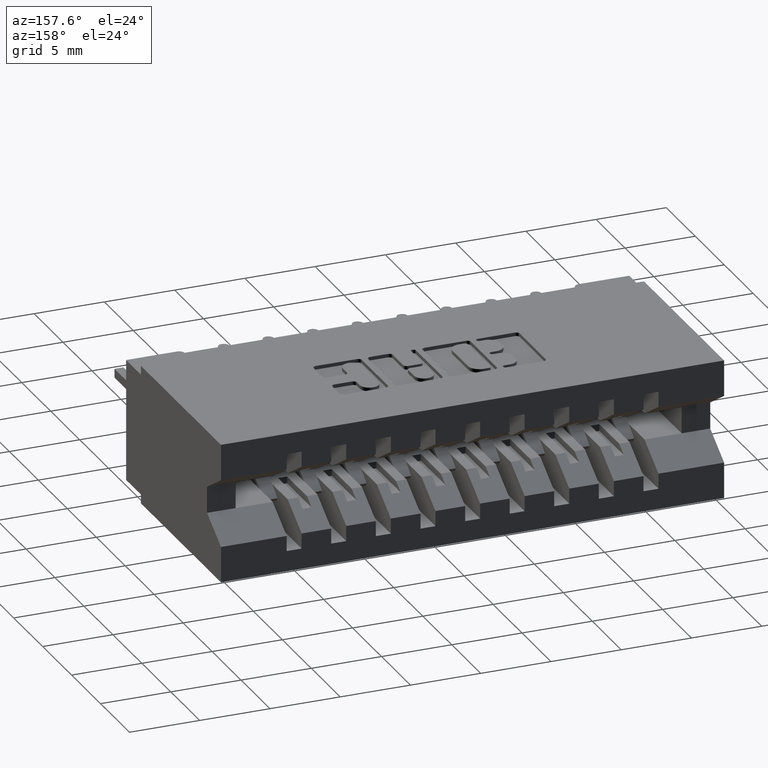
[diagram: clean part render]
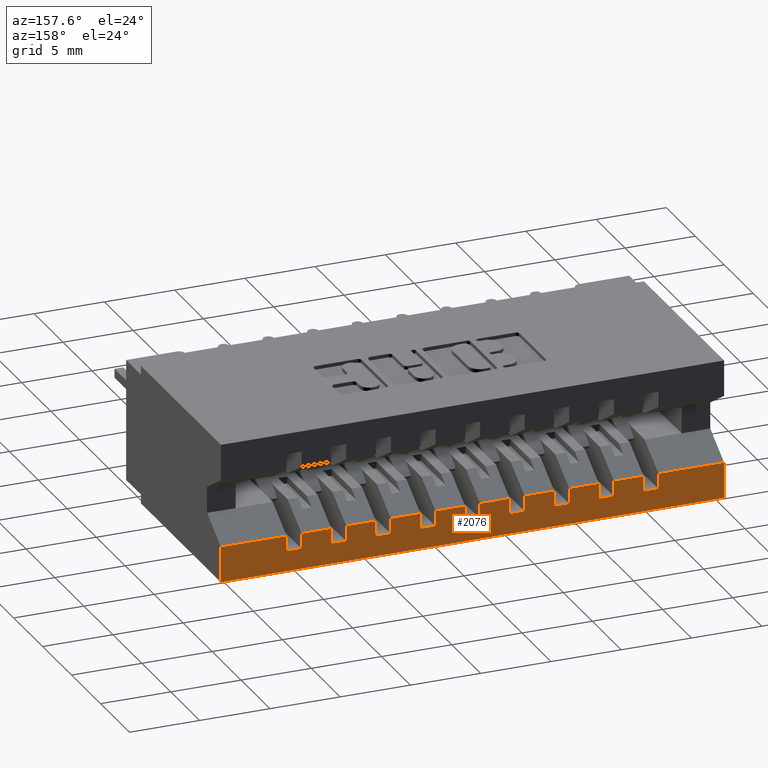
[diagram: same view with one face highlighted and labeled with its STEP entity id]
A machine part, auxiliary view. The second image highlights one B-rep face of the part: STEP entity #2076.
In plain terms, the highlighted planar face has unit normal (0, -1, 0).
Its self-contained STEP definition (entity closure, byte-faithful):
#26 = CARTESIAN_POINT ( 'NONE',  ( 0.6009999999999996456, 0.6449999999999999067, -5.373951300518784932E-17 ) ) ;
#161 = LINE ( 'NONE', #10041, #1628 ) ;
#163 = CARTESIAN_POINT ( 'NONE',  ( 0.4759999999999996456, 0.6449999999999999067, -0.3325000000000000178 ) ) ;
#251 = VECTOR ( 'NONE', #13571, 39.37007874015748143 ) ;
#271 = VECTOR ( 'NONE', #10078, 39.37007874015748143 ) ;
#284 = VERTEX_POINT ( 'NONE', #13947 ) ;
#332 = ORIENTED_EDGE ( 'NONE', *, *, #12105, .F. ) ;
#403 = DIRECTION ( 'NONE',  ( 2.385081683068867604E-16, 0.0000000000000000000, 1.000000000000000000 ) ) ;
#406 = VERTEX_POINT ( 'NONE', #16926 ) ;
#452 = EDGE_CURVE ( 'NONE', #599, #17177, #15991, .T. ) ;
#453 = EDGE_CURVE ( 'NONE', #5847, #5510, #7651, .T. ) ;
#551 = DIRECTION ( 'NONE',  ( 2.385081683068867604E-16, 0.0000000000000000000, 1.000000000000000000 ) ) ;
#571 = CARTESIAN_POINT ( 'NONE',  ( 0.8509999999999997566, 0.6449999999999999067, -5.373951300518784932E-17 ) ) ;
#599 = VERTEX_POINT ( 'NONE', #10039 ) ;
#613 = VECTOR ( 'NONE', #15566, 39.37007874015748143 ) ;
#642 = ORIENTED_EDGE ( 'NONE', *, *, #11053, .F. ) ;
#670 = CARTESIAN_POINT ( 'NONE',  ( 1.409999999999999920, 0.6449999999999999067, -0.2897499999999999520 ) ) ;
#675 = CARTESIAN_POINT ( 'NONE',  ( 1.409999999999999920, 0.6449999999999999067, -0.2897500000000000075 ) ) ;
#693 = EDGE_CURVE ( 'NONE', #7790, #2844, #4486, .T. ) ;
#762 = CARTESIAN_POINT ( 'NONE',  ( 0.3089999999999996083, 0.6449999999999999067, -0.2897500000000000075 ) ) ;
#794 = VERTEX_POINT ( 'NONE', #13463 ) ;
#805 = FACE_OUTER_BOUND ( 'NONE', #9536, .T. ) ;
#952 = ORIENTED_EDGE ( 'NONE', *, *, #11029, .F. ) ;
#969 = VERTEX_POINT ( 'NONE', #9470 ) ;
#1019 = VECTOR ( 'NONE', #1360, 39.37007874015748143 ) ;
#1089 = DIRECTION ( 'NONE',  ( -1.000000000000000000, 0.0000000000000000000, 0.0000000000000000000 ) ) ;
#1167 = CARTESIAN_POINT ( 'NONE',  ( 1.409999999999999920, 0.6449999999999999067, -0.2897500000000000075 ) ) ;
#1210 = CARTESIAN_POINT ( 'NONE',  ( 0.9339999999999996083, 0.6449999999999999067, -4.404883600063556642E-17 ) ) ;
#1226 = DIRECTION ( 'NONE',  ( -1.000000000000000000, 0.0000000000000000000, 0.0000000000000000000 ) ) ;
#1236 = EDGE_CURVE ( 'NONE', #4686, #6317, #13602, .T. ) ;
#1278 = VERTEX_POINT ( 'NONE', #16117 ) ;
#1360 = DIRECTION ( 'NONE',  ( -1.000000000000000000, 0.0000000000000000000, 0.0000000000000000000 ) ) ;
#1506 = CARTESIAN_POINT ( 'NONE',  ( 1.100999999999999535, 0.6449999999999999067, -0.2897499999999999520 ) ) ;
#1565 = VERTEX_POINT ( 'NONE', #16941 ) ;
#1628 = VECTOR ( 'NONE', #14391, 39.37007874015748143 ) ;
#1751 = CARTESIAN_POINT ( 'NONE',  ( 1.058999999999999719, 0.6449999999999999067, -4.404883600063556642E-17 ) ) ;
#1912 = ORIENTED_EDGE ( 'NONE', *, *, #16655, .T. ) ;
#1951 = VECTOR ( 'NONE', #14449, 39.37007874015748143 ) ;
#1976 = CARTESIAN_POINT ( 'NONE',  ( 0.0000000000000000000, 0.6449999999999999067, -0.2897500000000000075 ) ) ;
#2028 = DIRECTION ( 'NONE',  ( 2.385081683068867604E-16, 0.0000000000000000000, 1.000000000000000000 ) ) ;
#2076 = ADVANCED_FACE ( 'NONE', ( #805 ), #13185, .F. ) ;
#2118 = CARTESIAN_POINT ( 'NONE',  ( 0.6839999999999996083, 0.6449999999999999067, -0.3325000000000000178 ) ) ;
#2153 = ORIENTED_EDGE ( 'NONE', *, *, #12196, .T. ) ;
#2159 = ORIENTED_EDGE ( 'NONE', *, *, #11190, .F. ) ;
#2184 = DIRECTION ( 'NONE',  ( 2.385081683068867604E-16, 0.0000000000000000000, 1.000000000000000000 ) ) ;
#2358 = VERTEX_POINT ( 'NONE', #8457 ) ;
#2362 = DIRECTION ( 'NONE',  ( -1.000000000000000000, 0.0000000000000000000, 0.0000000000000000000 ) ) ;
#2377 = LINE ( 'NONE', #8095, #16700 ) ;
#2391 = EDGE_CURVE ( 'NONE', #8420, #11850, #7071, .T. ) ;
#2472 = CARTESIAN_POINT ( 'NONE',  ( 1.409999999999999920, 0.6449999999999999067, -0.2897500000000000075 ) ) ;
#2661 = ORIENTED_EDGE ( 'NONE', *, *, #693, .F. ) ;
#2817 = ORIENTED_EDGE ( 'NONE', *, *, #17392, .F. ) ;
#2844 = VERTEX_POINT ( 'NONE', #1506 ) ;
#2977 = VECTOR ( 'NONE', #2028, 39.37007874015748143 ) ;
#2991 = EDGE_CURVE ( 'NONE', #11989, #969, #15933, .T. ) ;
#3243 = CARTESIAN_POINT ( 'NONE',  ( 0.0000000000000000000, 0.6449999999999999067, 0.0000000000000000000 ) ) ;
#3372 = VERTEX_POINT ( 'NONE', #10690 ) ;
#3403 = EDGE_CURVE ( 'NONE', #4686, #406, #13190, .T. ) ;
#3412 = VERTEX_POINT ( 'NONE', #7744 ) ;
#3497 = EDGE_CURVE ( 'NONE', #284, #15598, #4110, .T. ) ;
#3517 = EDGE_CURVE ( 'NONE', #6317, #9070, #2377, .T. ) ;
#3561 = VECTOR ( 'NONE', #13973, 39.37007874015748143 ) ;
#3592 = LINE ( 'NONE', #7658, #2977 ) ;
#3632 = LINE ( 'NONE', #14832, #16205 ) ;
#3778 = CARTESIAN_POINT ( 'NONE',  ( 1.409999999999999920, 0.6449999999999999067, -0.3900000000000000133 ) ) ;
#3785 = VECTOR ( 'NONE', #9149, 39.37007874015748143 ) ;
#3812 = EDGE_CURVE ( 'NONE', #3372, #5813, #7533, .T. ) ;
#3847 = ORIENTED_EDGE ( 'NONE', *, *, #14819, .T. ) ;
#3874 = CARTESIAN_POINT ( 'NONE',  ( 0.3089999999999996083, 0.6449999999999999067, -0.3325000000000000178 ) ) ;
#4035 = DIRECTION ( 'NONE',  ( 2.385081683068867604E-16, 0.0000000000000000000, 1.000000000000000000 ) ) ;
#4078 = CARTESIAN_POINT ( 'NONE',  ( 1.409999999999999920, 0.6449999999999999067, -0.2897500000000000075 ) ) ;
#4110 = LINE ( 'NONE', #1167, #16116 ) ;
#4255 = EDGE_CURVE ( 'NONE', #10741, #2358, #14735, .T. ) ;
#4373 = VECTOR ( 'NONE', #1089, 39.37007874015748143 ) ;
#4480 = DIRECTION ( 'NONE',  ( 1.000000000000000000, -0.0000000000000000000, -2.307304048702925122E-16 ) ) ;
#4486 = LINE ( 'NONE', #10125, #1019 ) ;
#4515 = DIRECTION ( 'NONE',  ( 2.385081683068867604E-16, 0.0000000000000000000, 1.000000000000000000 ) ) ;
#4585 = CARTESIAN_POINT ( 'NONE',  ( 1.183999999999999719, 0.6449999999999999067, -0.2897500000000000075 ) ) ;
#4617 = LINE ( 'NONE', #3243, #9738 ) ;
#4659 = CARTESIAN_POINT ( 'NONE',  ( 0.5589999999999996083, 0.6449999999999999067, -0.3325000000000000178 ) ) ;
#4686 = VERTEX_POINT ( 'NONE', #670 ) ;
#4785 = DIRECTION ( 'NONE',  ( -1.000000000000000000, 0.0000000000000000000, 0.0000000000000000000 ) ) ;
#4907 = CARTESIAN_POINT ( 'NONE',  ( 0.1839999999999996916, 0.6449999999999999067, -4.404883600063556642E-17 ) ) ;
#4920 = ORIENTED_EDGE ( 'NONE', *, *, #9069, .T. ) ;
#4971 = CARTESIAN_POINT ( 'NONE',  ( 0.8089999999999997193, 0.6449999999999999067, -4.404883600063556642E-17 ) ) ;
#5097 = VERTEX_POINT ( 'NONE', #15812 ) ;
#5205 = ORIENTED_EDGE ( 'NONE', *, *, #11509, .T. ) ;
#5275 = EDGE_CURVE ( 'NONE', #17955, #1565, #9586, .T. ) ;
#5349 = ORIENTED_EDGE ( 'NONE', *, *, #16760, .T. ) ;
#5397 = EDGE_CURVE ( 'NONE', #8420, #11989, #161, .T. ) ;
#5407 = DIRECTION ( 'NONE',  ( -1.000000000000000000, -0.0000000000000000000, -0.0000000000000000000 ) ) ;
#5485 = VECTOR ( 'NONE', #8950, 39.37007874015748143 ) ;
#5510 = VERTEX_POINT ( 'NONE', #12404 ) ;
#5514 = LINE ( 'NONE', #8208, #16136 ) ;
#5538 = CARTESIAN_POINT ( 'NONE',  ( 0.6009999999999996456, 0.6449999999999999067, -0.2897499999999999520 ) ) ;
#5556 = LINE ( 'NONE', #26, #8239 ) ;
#5683 = CARTESIAN_POINT ( 'NONE',  ( 0.9339999999999996083, 0.6449999999999999067, -0.2897500000000000075 ) ) ;
#5691 = ORIENTED_EDGE ( 'NONE', *, *, #1236, .T. ) ;
#5694 = EDGE_CURVE ( 'NONE', #7538, #13763, #7228, .T. ) ;
#5695 = ORIENTED_EDGE ( 'NONE', *, *, #13879, .F. ) ;
#5767 = VECTOR ( 'NONE', #12497, 39.37007874015748143 ) ;
#5813 = VERTEX_POINT ( 'NONE', #13053 ) ;
#5847 = VERTEX_POINT ( 'NONE', #762 ) ;
#5872 = VECTOR ( 'NONE', #1226, 39.37007874015748143 ) ;
#5878 = LINE ( 'NONE', #5974, #8588 ) ;
#5966 = VERTEX_POINT ( 'NONE', #5538 ) ;
#5974 = CARTESIAN_POINT ( 'NONE',  ( 1.100999999999999757, 0.6449999999999999067, -5.373951300518784932E-17 ) ) ;
#6230 = EDGE_CURVE ( 'NONE', #10741, #17034, #13031, .T. ) ;
#6266 = CARTESIAN_POINT ( 'NONE',  ( 1.409999999999999920, 0.6449999999999999067, -0.2897500000000000075 ) ) ;
#6269 = DIRECTION ( 'NONE',  ( 2.385081683068867604E-16, 0.0000000000000000000, 1.000000000000000000 ) ) ;
#6294 = CARTESIAN_POINT ( 'NONE',  ( 1.058999999999999497, 0.6449999999999999067, -0.3325000000000000178 ) ) ;
#6317 = VERTEX_POINT ( 'NONE', #3778 ) ;
#6397 = CARTESIAN_POINT ( 'NONE',  ( 1.058999999999999497, 0.6449999999999999067, -0.3325000000000000178 ) ) ;
#6435 = DIRECTION ( 'NONE',  ( 0.0000000000000000000, -1.000000000000000000, 0.0000000000000000000 ) ) ;
#6472 = EDGE_CURVE ( 'NONE', #13654, #3412, #5514, .T. ) ;
#6529 = VERTEX_POINT ( 'NONE', #14680 ) ;
#6532 = VERTEX_POINT ( 'NONE', #163 ) ;
#6545 = ORIENTED_EDGE ( 'NONE', *, *, #6472, .T. ) ;
#6559 = VECTOR ( 'NONE', #17602, 39.37007874015748143 ) ;
#6574 = LINE ( 'NONE', #14898, #16854 ) ;
#6580 = CARTESIAN_POINT ( 'NONE',  ( 1.183999999999999497, 0.6449999999999999067, -0.3325000000000000178 ) ) ;
#6758 = LINE ( 'NONE', #4907, #10610 ) ;
#6856 = ORIENTED_EDGE ( 'NONE', *, *, #3403, .F. ) ;
#6875 = ORIENTED_EDGE ( 'NONE', *, *, #4255, .T. ) ;
#6903 = VERTEX_POINT ( 'NONE', #5683 ) ;
#7036 = ORIENTED_EDGE ( 'NONE', *, *, #9375, .F. ) ;
#7071 = LINE ( 'NONE', #16896, #12750 ) ;
#7144 = DIRECTION ( 'NONE',  ( 2.385081683068867604E-16, 0.0000000000000000000, 1.000000000000000000 ) ) ;
#7197 = CARTESIAN_POINT ( 'NONE',  ( 0.4339999999999996638, 0.6449999999999999067, -0.2897500000000000075 ) ) ;
#7228 = LINE ( 'NONE', #14069, #5767 ) ;
#7359 = CARTESIAN_POINT ( 'NONE',  ( 0.8089999999999996083, 0.6449999999999999067, -0.3325000000000000178 ) ) ;
#7417 = CARTESIAN_POINT ( 'NONE',  ( 0.7259999999999997566, 0.6449999999999999067, -5.373951300518784932E-17 ) ) ;
#7531 = VERTEX_POINT ( 'NONE', #15077 ) ;
#7533 = LINE ( 'NONE', #4659, #11670 ) ;
#7538 = VERTEX_POINT ( 'NONE', #3874 ) ;
#7651 = LINE ( 'NONE', #13288, #11895 ) ;
#7657 = LINE ( 'NONE', #16175, #9398 ) ;
#7658 = CARTESIAN_POINT ( 'NONE',  ( 1.225999999999999757, 0.6449999999999999067, -5.373951300518784932E-17 ) ) ;
#7725 = LINE ( 'NONE', #12335, #8186 ) ;
#7744 = CARTESIAN_POINT ( 'NONE',  ( 0.2259999999999996179, 0.6449999999999999067, -0.3325000000000000178 ) ) ;
#7790 = VERTEX_POINT ( 'NONE', #4585 ) ;
#7841 = ORIENTED_EDGE ( 'NONE', *, *, #5694, .T. ) ;
#7957 = CARTESIAN_POINT ( 'NONE',  ( 0.6839999999999996083, 0.6449999999999999067, -0.2897500000000000075 ) ) ;
#8095 = CARTESIAN_POINT ( 'NONE',  ( 0.0000000000000000000, 0.6449999999999999067, -0.3900000000000000133 ) ) ;
#8159 = CARTESIAN_POINT ( 'NONE',  ( 1.183999999999999497, 0.6449999999999999067, -0.3325000000000000178 ) ) ;
#8179 = LINE ( 'NONE', #13639, #8472 ) ;
#8186 = VECTOR ( 'NONE', #2184, 39.37007874015748143 ) ;
#8208 = CARTESIAN_POINT ( 'NONE',  ( 0.1839999999999996361, 0.6449999999999999067, -0.3325000000000000178 ) ) ;
#8239 = VECTOR ( 'NONE', #7144, 39.37007874015748143 ) ;
#8284 = CARTESIAN_POINT ( 'NONE',  ( 0.4759999999999996456, 0.6449999999999999067, -0.2897499999999999520 ) ) ;
#8302 = DIRECTION ( 'NONE',  ( 1.000000000000000000, -0.0000000000000000000, -2.307304048702925122E-16 ) ) ;
#8420 = VERTEX_POINT ( 'NONE', #2118 ) ;
#8457 = CARTESIAN_POINT ( 'NONE',  ( 1.100999999999999535, 0.6449999999999999067, -0.3325000000000000178 ) ) ;
#8472 = VECTOR ( 'NONE', #2362, 39.37007874015748143 ) ;
#8588 = VECTOR ( 'NONE', #17269, 39.37007874015748143 ) ;
#8607 = LINE ( 'NONE', #8686, #271 ) ;
#8637 = DIRECTION ( 'NONE',  ( 2.385081683068867604E-16, 0.0000000000000000000, 1.000000000000000000 ) ) ;
#8686 = CARTESIAN_POINT ( 'NONE',  ( 0.3089999999999997193, 0.6449999999999999067, -4.404883600063556642E-17 ) ) ;
#8950 = DIRECTION ( 'NONE',  ( 2.385081683068867604E-16, 0.0000000000000000000, 1.000000000000000000 ) ) ;
#8999 = VECTOR ( 'NONE', #11986, 39.37007874015748143 ) ;
#9067 = VERTEX_POINT ( 'NONE', #1976 ) ;
#9069 = EDGE_CURVE ( 'NONE', #5097, #17955, #3632, .T. ) ;
#9070 = VERTEX_POINT ( 'NONE', #12035 ) ;
#9149 = DIRECTION ( 'NONE',  ( 2.385081683068867604E-16, 0.0000000000000000000, 1.000000000000000000 ) ) ;
#9254 = ORIENTED_EDGE ( 'NONE', *, *, #453, .F. ) ;
#9350 = VECTOR ( 'NONE', #4480, 39.37007874015748143 ) ;
#9375 = EDGE_CURVE ( 'NONE', #7538, #5847, #8607, .T. ) ;
#9398 = VECTOR ( 'NONE', #551, 39.37007874015748143 ) ;
#9470 = CARTESIAN_POINT ( 'NONE',  ( 0.7259999999999995346, 0.6449999999999999067, -0.2897500000000000075 ) ) ;
#9536 = EDGE_LOOP ( 'NONE', ( #952, #1912, #12419, #6856, #5691, #17247, #5349, #332, #12441, #6545, #14742, #9254, #7036, #7841, #5205, #13530, #17145, #3847, #16734, #16409, #18004, #14164, #2153, #9597, #14190, #14089, #10618, #2817, #642, #11752, #13915, #13871, #5695, #4920, #9576, #2159, #14261, #6875, #18000, #2661 ) ) ;
#9576 = ORIENTED_EDGE ( 'NONE', *, *, #5275, .T. ) ;
#9586 = LINE ( 'NONE', #15528, #14322 ) ;
#9597 = ORIENTED_EDGE ( 'NONE', *, *, #13596, .F. ) ;
#9616 = CARTESIAN_POINT ( 'NONE',  ( 0.1839999999999996361, 0.6449999999999999067, -0.3325000000000000178 ) ) ;
#9738 = VECTOR ( 'NONE', #13046, 39.37007874015748143 ) ;
#9892 = LINE ( 'NONE', #8159, #3561 ) ;
#10018 = EDGE_CURVE ( 'NONE', #6532, #15598, #7725, .T. ) ;
#10032 = CARTESIAN_POINT ( 'NONE',  ( 0.8509999999999996456, 0.6449999999999999067, -0.3325000000000000178 ) ) ;
#10039 = CARTESIAN_POINT ( 'NONE',  ( 0.4339999999999996638, 0.6449999999999999067, -0.3325000000000000178 ) ) ;
#10041 = CARTESIAN_POINT ( 'NONE',  ( 0.6839999999999996083, 0.6449999999999999067, -0.3325000000000000178 ) ) ;
#10078 = DIRECTION ( 'NONE',  ( 2.385081683068867604E-16, 0.0000000000000000000, 1.000000000000000000 ) ) ;
#10125 = CARTESIAN_POINT ( 'NONE',  ( 1.409999999999999920, 0.6449999999999999067, -0.2897500000000000075 ) ) ;
#10354 = VECTOR ( 'NONE', #11147, 39.37007874015748143 ) ;
#10544 = DIRECTION ( 'NONE',  ( 2.385081683068867604E-16, 0.0000000000000000000, 1.000000000000000000 ) ) ;
#10610 = VECTOR ( 'NONE', #10544, 39.37007874015748143 ) ;
#10618 = ORIENTED_EDGE ( 'NONE', *, *, #2991, .T. ) ;
#10631 = DIRECTION ( 'NONE',  ( 2.385081683068867604E-16, 0.0000000000000000000, 1.000000000000000000 ) ) ;
#10656 = CARTESIAN_POINT ( 'NONE',  ( 0.8509999999999997566, 0.6449999999999999067, -0.2897500000000000075 ) ) ;
#10690 = CARTESIAN_POINT ( 'NONE',  ( 0.5589999999999996083, 0.6449999999999999067, -0.3325000000000000178 ) ) ;
#10704 = EDGE_CURVE ( 'NONE', #11239, #16548, #12200, .T. ) ;
#10739 = DIRECTION ( 'NONE',  ( 1.000000000000000000, -0.0000000000000000000, -2.307304048702925122E-16 ) ) ;
#10741 = VERTEX_POINT ( 'NONE', #6294 ) ;
#11029 = EDGE_CURVE ( 'NONE', #12409, #7790, #7657, .T. ) ;
#11053 = EDGE_CURVE ( 'NONE', #794, #14396, #17667, .T. ) ;
#11100 = LINE ( 'NONE', #4078, #613 ) ;
#11147 = DIRECTION ( 'NONE',  ( -1.000000000000000000, 0.0000000000000000000, 0.0000000000000000000 ) ) ;
#11190 = EDGE_CURVE ( 'NONE', #17034, #1565, #12532, .T. ) ;
#11239 = VERTEX_POINT ( 'NONE', #10032 ) ;
#11377 = CARTESIAN_POINT ( 'NONE',  ( 0.5589999999999997193, 0.6449999999999999067, -4.404883600063556642E-17 ) ) ;
#11509 = EDGE_CURVE ( 'NONE', #13763, #1278, #17829, .T. ) ;
#11592 = VECTOR ( 'NONE', #6269, 39.37007874015748143 ) ;
#11621 = EDGE_CURVE ( 'NONE', #3372, #284, #14065, .T. ) ;
#11670 = VECTOR ( 'NONE', #16331, 39.37007874015748143 ) ;
#11752 = ORIENTED_EDGE ( 'NONE', *, *, #15985, .T. ) ;
#11805 = CARTESIAN_POINT ( 'NONE',  ( 0.4339999999999996638, 0.6449999999999999067, -4.404883600063556642E-17 ) ) ;
#11850 = VERTEX_POINT ( 'NONE', #7957 ) ;
#11895 = VECTOR ( 'NONE', #4785, 39.37007874015748143 ) ;
#11986 = DIRECTION ( 'NONE',  ( -1.000000000000000000, 0.0000000000000000000, 0.0000000000000000000 ) ) ;
#11989 = VERTEX_POINT ( 'NONE', #12921 ) ;
#12018 = CARTESIAN_POINT ( 'NONE',  ( 1.058999999999999497, 0.6449999999999999067, -0.2897500000000000075 ) ) ;
#12035 = CARTESIAN_POINT ( 'NONE',  ( 0.0000000000000000000, 0.6449999999999999067, -0.3900000000000000133 ) ) ;
#12105 = EDGE_CURVE ( 'NONE', #6529, #9067, #12862, .T. ) ;
#12196 = EDGE_CURVE ( 'NONE', #5813, #5966, #5556, .T. ) ;
#12200 = LINE ( 'NONE', #571, #3785 ) ;
#12335 = CARTESIAN_POINT ( 'NONE',  ( 0.4759999999999996456, 0.6449999999999999067, -5.373951300518784932E-17 ) ) ;
#12404 = CARTESIAN_POINT ( 'NONE',  ( 0.2259999999999996456, 0.6449999999999999067, -0.2897500000000000075 ) ) ;
#12409 = VERTEX_POINT ( 'NONE', #6580 ) ;
#12419 = ORIENTED_EDGE ( 'NONE', *, *, #17281, .T. ) ;
#12441 = ORIENTED_EDGE ( 'NONE', *, *, #12478, .F. ) ;
#12478 = EDGE_CURVE ( 'NONE', #13654, #6529, #6758, .T. ) ;
#12497 = DIRECTION ( 'NONE',  ( 1.000000000000000000, -0.0000000000000000000, -2.307304048702925122E-16 ) ) ;
#12532 = LINE ( 'NONE', #2472, #4373 ) ;
#12534 = LINE ( 'NONE', #16814, #10354 ) ;
#12696 = VECTOR ( 'NONE', #13519, 39.37007874015748143 ) ;
#12750 = VECTOR ( 'NONE', #8637, 39.37007874015748143 ) ;
#12776 = CARTESIAN_POINT ( 'NONE',  ( 0.3509999999999997011, 0.6449999999999999067, -5.373951300518784932E-17 ) ) ;
#12845 = LINE ( 'NONE', #1210, #15684 ) ;
#12862 = LINE ( 'NONE', #13889, #5872 ) ;
#12921 = CARTESIAN_POINT ( 'NONE',  ( 0.7259999999999995346, 0.6449999999999999067, -0.3325000000000000178 ) ) ;
#12946 = VECTOR ( 'NONE', #16955, 39.37007874015748143 ) ;
#13031 = LINE ( 'NONE', #1751, #5485 ) ;
#13046 = DIRECTION ( 'NONE',  ( -0.0000000000000000000, -0.0000000000000000000, 1.000000000000000000 ) ) ;
#13053 = CARTESIAN_POINT ( 'NONE',  ( 0.6009999999999995346, 0.6449999999999999067, -0.3325000000000000178 ) ) ;
#13177 = LINE ( 'NONE', #7359, #9350 ) ;
#13185 = PLANE ( 'NONE',  #13836 ) ;
#13190 = LINE ( 'NONE', #6266, #8999 ) ;
#13280 = DIRECTION ( 'NONE',  ( 0.0000000000000000000, -0.0000000000000000000, -1.000000000000000000 ) ) ;
#13288 = CARTESIAN_POINT ( 'NONE',  ( 1.409999999999999920, 0.6449999999999999067, -0.2897500000000000075 ) ) ;
#13463 = CARTESIAN_POINT ( 'NONE',  ( 0.8089999999999996083, 0.6449999999999999067, -0.3325000000000000178 ) ) ;
#13519 = DIRECTION ( 'NONE',  ( 1.000000000000000000, -0.0000000000000000000, -2.307304048702925122E-16 ) ) ;
#13530 = ORIENTED_EDGE ( 'NONE', *, *, #16180, .F. ) ;
#13571 = DIRECTION ( 'NONE',  ( 2.385081683068867604E-16, 0.0000000000000000000, 1.000000000000000000 ) ) ;
#13596 = EDGE_CURVE ( 'NONE', #11850, #5966, #14541, .T. ) ;
#13602 = LINE ( 'NONE', #17877, #6559 ) ;
#13639 = CARTESIAN_POINT ( 'NONE',  ( 1.409999999999999920, 0.6449999999999999067, -0.2897500000000000075 ) ) ;
#13654 = VERTEX_POINT ( 'NONE', #9616 ) ;
#13763 = VERTEX_POINT ( 'NONE', #15002 ) ;
#13836 = AXIS2_PLACEMENT_3D ( 'NONE', #16252, #6435, #13280 ) ;
#13871 = ORIENTED_EDGE ( 'NONE', *, *, #16713, .F. ) ;
#13879 = EDGE_CURVE ( 'NONE', #5097, #6903, #12845, .T. ) ;
#13889 = CARTESIAN_POINT ( 'NONE',  ( 1.409999999999999920, 0.6449999999999999067, -0.2897500000000000075 ) ) ;
#13915 = ORIENTED_EDGE ( 'NONE', *, *, #10704, .T. ) ;
#13947 = CARTESIAN_POINT ( 'NONE',  ( 0.5589999999999997193, 0.6449999999999999067, -0.2897499999999999520 ) ) ;
#13973 = DIRECTION ( 'NONE',  ( 1.000000000000000000, -0.0000000000000000000, -2.307304048702925122E-16 ) ) ;
#14065 = LINE ( 'NONE', #11377, #12946 ) ;
#14069 = CARTESIAN_POINT ( 'NONE',  ( 0.3089999999999996083, 0.6449999999999999067, -0.3325000000000000178 ) ) ;
#14089 = ORIENTED_EDGE ( 'NONE', *, *, #5397, .T. ) ;
#14164 = ORIENTED_EDGE ( 'NONE', *, *, #3812, .T. ) ;
#14190 = ORIENTED_EDGE ( 'NONE', *, *, #2391, .F. ) ;
#14261 = ORIENTED_EDGE ( 'NONE', *, *, #6230, .F. ) ;
#14322 = VECTOR ( 'NONE', #4035, 39.37007874015748143 ) ;
#14391 = DIRECTION ( 'NONE',  ( 1.000000000000000000, -0.0000000000000000000, -2.307304048702925122E-16 ) ) ;
#14396 = VERTEX_POINT ( 'NONE', #16076 ) ;
#14449 = DIRECTION ( 'NONE',  ( 1.000000000000000000, -0.0000000000000000000, -2.307304048702925122E-16 ) ) ;
#14541 = LINE ( 'NONE', #675, #17166 ) ;
#14680 = CARTESIAN_POINT ( 'NONE',  ( 0.1839999999999996638, 0.6449999999999999067, -0.2897500000000000075 ) ) ;
#14735 = LINE ( 'NONE', #6397, #1951 ) ;
#14742 = ORIENTED_EDGE ( 'NONE', *, *, #16950, .T. ) ;
#14819 = EDGE_CURVE ( 'NONE', #599, #6532, #16670, .T. ) ;
#14832 = CARTESIAN_POINT ( 'NONE',  ( 0.9339999999999994973, 0.6449999999999999067, -0.3325000000000000178 ) ) ;
#14898 = CARTESIAN_POINT ( 'NONE',  ( 0.2259999999999996734, 0.6449999999999999067, -5.373951300518784932E-17 ) ) ;
#15002 = CARTESIAN_POINT ( 'NONE',  ( 0.3509999999999995901, 0.6449999999999999067, -0.3325000000000000178 ) ) ;
#15077 = CARTESIAN_POINT ( 'NONE',  ( 1.225999999999999535, 0.6449999999999999067, -0.3325000000000000178 ) ) ;
#15099 = CARTESIAN_POINT ( 'NONE',  ( 0.4339999999999996638, 0.6449999999999999067, -0.3325000000000000178 ) ) ;
#15528 = CARTESIAN_POINT ( 'NONE',  ( 0.9759999999999996456, 0.6449999999999999067, -5.373951300518784932E-17 ) ) ;
#15566 = DIRECTION ( 'NONE',  ( -1.000000000000000000, 0.0000000000000000000, 0.0000000000000000000 ) ) ;
#15598 = VERTEX_POINT ( 'NONE', #8284 ) ;
#15684 = VECTOR ( 'NONE', #4515, 39.37007874015748143 ) ;
#15812 = CARTESIAN_POINT ( 'NONE',  ( 0.9339999999999994973, 0.6449999999999999067, -0.3325000000000000178 ) ) ;
#15921 = VECTOR ( 'NONE', #18253, 39.37007874015748143 ) ;
#15933 = LINE ( 'NONE', #7417, #16405 ) ;
#15985 = EDGE_CURVE ( 'NONE', #794, #11239, #13177, .T. ) ;
#15991 = LINE ( 'NONE', #11805, #11592 ) ;
#16076 = CARTESIAN_POINT ( 'NONE',  ( 0.8089999999999997193, 0.6449999999999999067, -0.2897500000000000075 ) ) ;
#16116 = VECTOR ( 'NONE', #16802, 39.37007874015748143 ) ;
#16117 = CARTESIAN_POINT ( 'NONE',  ( 0.3509999999999995901, 0.6449999999999999067, -0.2897500000000000075 ) ) ;
#16136 = VECTOR ( 'NONE', #8302, 39.37007874015748143 ) ;
#16175 = CARTESIAN_POINT ( 'NONE',  ( 1.183999999999999719, 0.6449999999999999067, -4.404883600063556642E-17 ) ) ;
#16180 = EDGE_CURVE ( 'NONE', #17177, #1278, #8179, .T. ) ;
#16205 = VECTOR ( 'NONE', #10739, 39.37007874015748143 ) ;
#16252 = CARTESIAN_POINT ( 'NONE',  ( 0.0000000000000000000, 0.6449999999999999067, -0.3900000000000000133 ) ) ;
#16331 = DIRECTION ( 'NONE',  ( 1.000000000000000000, -0.0000000000000000000, -2.307304048702925122E-16 ) ) ;
#16405 = VECTOR ( 'NONE', #403, 39.37007874015748143 ) ;
#16409 = ORIENTED_EDGE ( 'NONE', *, *, #3497, .F. ) ;
#16548 = VERTEX_POINT ( 'NONE', #10656 ) ;
#16655 = EDGE_CURVE ( 'NONE', #12409, #7531, #9892, .T. ) ;
#16670 = LINE ( 'NONE', #15099, #12696 ) ;
#16700 = VECTOR ( 'NONE', #5407, 39.37007874015748143 ) ;
#16713 = EDGE_CURVE ( 'NONE', #6903, #16548, #11100, .T. ) ;
#16734 = ORIENTED_EDGE ( 'NONE', *, *, #10018, .T. ) ;
#16760 = EDGE_CURVE ( 'NONE', #9070, #9067, #4617, .T. ) ;
#16802 = DIRECTION ( 'NONE',  ( -1.000000000000000000, 0.0000000000000000000, 0.0000000000000000000 ) ) ;
#16814 = CARTESIAN_POINT ( 'NONE',  ( 1.409999999999999920, 0.6449999999999999067, -0.2897500000000000075 ) ) ;
#16854 = VECTOR ( 'NONE', #10631, 39.37007874015748143 ) ;
#16896 = CARTESIAN_POINT ( 'NONE',  ( 0.6839999999999997193, 0.6449999999999999067, -4.404883600063556642E-17 ) ) ;
#16926 = CARTESIAN_POINT ( 'NONE',  ( 1.225999999999999757, 0.6449999999999999067, -0.2897500000000000075 ) ) ;
#16941 = CARTESIAN_POINT ( 'NONE',  ( 0.9759999999999996456, 0.6449999999999999067, -0.2897500000000000075 ) ) ;
#16950 = EDGE_CURVE ( 'NONE', #3412, #5510, #6574, .T. ) ;
#16955 = DIRECTION ( 'NONE',  ( 2.385081683068867604E-16, 0.0000000000000000000, 1.000000000000000000 ) ) ;
#17034 = VERTEX_POINT ( 'NONE', #12018 ) ;
#17145 = ORIENTED_EDGE ( 'NONE', *, *, #452, .F. ) ;
#17166 = VECTOR ( 'NONE', #17605, 39.37007874015748143 ) ;
#17177 = VERTEX_POINT ( 'NONE', #7197 ) ;
#17247 = ORIENTED_EDGE ( 'NONE', *, *, #3517, .T. ) ;
#17269 = DIRECTION ( 'NONE',  ( 2.385081683068867604E-16, 0.0000000000000000000, 1.000000000000000000 ) ) ;
#17281 = EDGE_CURVE ( 'NONE', #7531, #406, #3592, .T. ) ;
#17392 = EDGE_CURVE ( 'NONE', #14396, #969, #12534, .T. ) ;
#17544 = EDGE_CURVE ( 'NONE', #2358, #2844, #5878, .T. ) ;
#17602 = DIRECTION ( 'NONE',  ( 0.0000000000000000000, 0.0000000000000000000, -1.000000000000000000 ) ) ;
#17605 = DIRECTION ( 'NONE',  ( -1.000000000000000000, 0.0000000000000000000, 0.0000000000000000000 ) ) ;
#17667 = LINE ( 'NONE', #4971, #251 ) ;
#17829 = LINE ( 'NONE', #12776, #15921 ) ;
#17877 = CARTESIAN_POINT ( 'NONE',  ( 1.409999999999999920, 0.6449999999999999067, 0.0000000000000000000 ) ) ;
#17955 = VERTEX_POINT ( 'NONE', #18255 ) ;
#18000 = ORIENTED_EDGE ( 'NONE', *, *, #17544, .T. ) ;
#18004 = ORIENTED_EDGE ( 'NONE', *, *, #11621, .F. ) ;
#18253 = DIRECTION ( 'NONE',  ( 2.385081683068867604E-16, 0.0000000000000000000, 1.000000000000000000 ) ) ;
#18255 = CARTESIAN_POINT ( 'NONE',  ( 0.9759999999999995346, 0.6449999999999999067, -0.3325000000000000178 ) ) ;